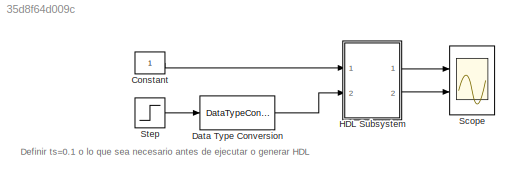
MODEL slx_35d8f64d009c
KIND model
CONFIG AbsTol = auto
CONFIG EnableMultiTasking = on
CONFIG FixedStep = auto
CONFIG MaxStep = auto
CONFIG MinStep = auto
CONFIG RelTol = 1e-3
CONFIG SampleTimeConstraint = Unconstrained
CONFIG Solver = VariableStepAuto
CONFIG SolverName = VariableStepAuto
CONFIG StartTime = 0.0
CONFIG StopTime = 200*ts
BLOCK [Constant] Constant
  OutDataTypeStr = boolean
  SampleTime = ts
BLOCK [DataTypeConversion] Data Type Conversion
  OutDataTypeStr = boolean
  RndMeth = Floor
  SaturateOnIntegerOverflow = off
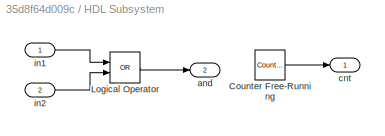
BLOCK [SubSystem] HDL Subsystem
  Ports = [2, 2]
  RequestExecContextInheritance = off
BLOCK [Reference] HDL Subsystem/Counter Free-Running  REF=simulink/Sources/Counter
Free-Running
  Ports = [0, 1]
  SourceBlock = simulink/Sources/Counter\nFree-Running
  SourceProductBaseCode = SL
  SourceProductName = Simulink
  SourceType = Counter Free-Running
BLOCK [Logic] HDL Subsystem/Logical Operator
  AllPortsSameDT = off
  Operator = OR
  OutDataTypeStr = boolean
  Ports = [2, 1]
BLOCK [Outport] HDL Subsystem/and
  IconDisplay = Port number
  Port = 2
BLOCK [Outport] HDL Subsystem/cnt
  IconDisplay = Port number
BLOCK [Inport] HDL Subsystem/in1
  IconDisplay = Port number
BLOCK [Inport] HDL Subsystem/in2
  IconDisplay = Port number
  Port = 2
BLOCK [Scope] Scope
  Floating = off
  NumInputPorts = 2
  Ports = [2]
  ScopeSpecificationString = Simulink.scopes.TimeScopeBlockCfg('CurrentConfiguration', extmgr.ConfigurationSet(extmgr.Configuration('Core','General UI',true),extmgr.Configuration('Core','Source UI',true),extmgr.Configuration('Sources','WiredSimulink',true),extmgr.Configuration('Visuals','Time Domain',true,'SerializedDisplays',{struct('MinYLimReal','-1.875','MaxYLimReal','16.875','YLabelReal','','MinYLimMag','0.00000','MaxYLim...<+1967ch>
BLOCK [Step] Step
  SampleTime = ts
  Time = 100*ts
ANNOTATION (root): Definir ts=0.1 o lo que sea necesario antes de ejecutar o generar HDL
LINE Constant:1 -> HDL Subsystem:1
LINE Data Type Conversion:1 -> HDL Subsystem:2
LINE HDL Subsystem/Counter Free-Running:1 -> HDL Subsystem/cnt:1
LINE HDL Subsystem/Logical Operator:1 -> HDL Subsystem/and:1
LINE HDL Subsystem/in1:1 -> HDL Subsystem/Logical Operator:1
LINE HDL Subsystem/in2:1 -> HDL Subsystem/Logical Operator:2
LINE HDL Subsystem:1 -> Scope:1
LINE HDL Subsystem:2 -> Scope:2
LINE Step:1 -> Data Type Conversion:1
